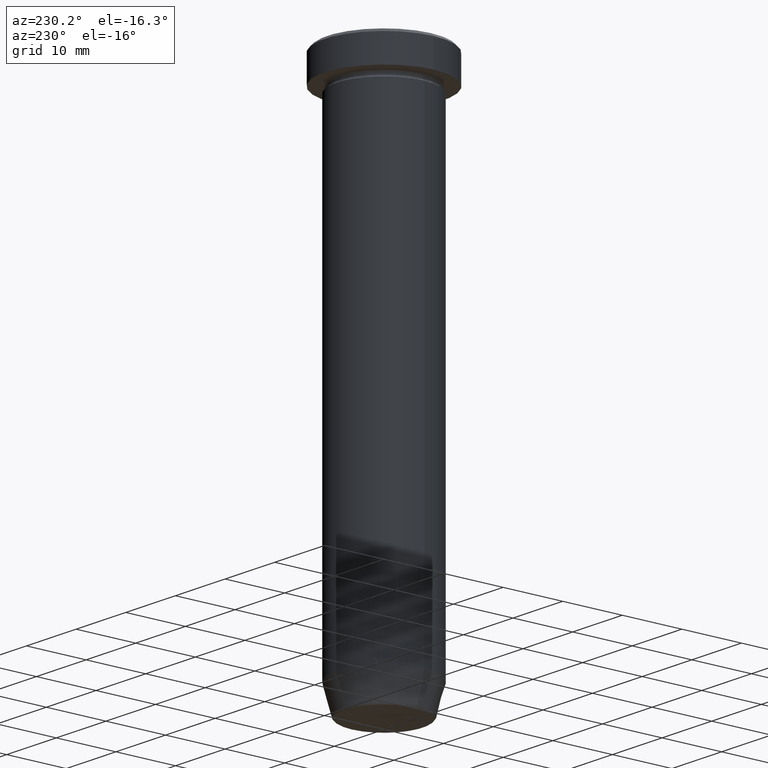
[diagram: clean part render]
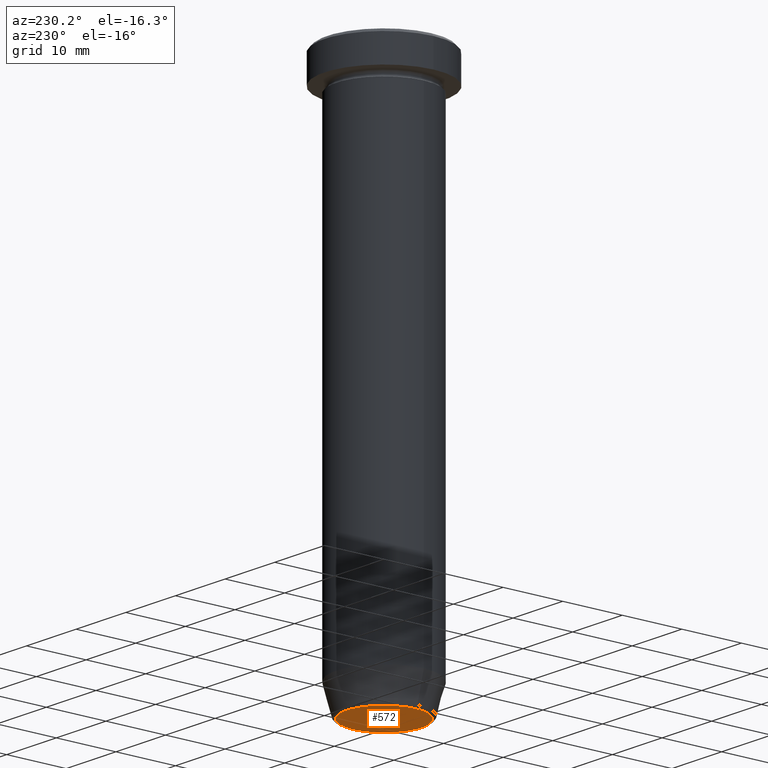
[diagram: same view with one face highlighted and labeled with its STEP entity id]
A machine part, auxiliary view. The second image highlights one B-rep face of the part: STEP entity #572.
In plain terms, the highlighted planar face has unit normal (0, -0, 1).
Its self-contained STEP definition (entity closure, byte-faithful):
#17 = CARTESIAN_POINT ( 'NONE',  ( 0.000000000000000000, 0.000000000000000000, -90.00000000000000000 ) ) ;
#27 = AXIS2_PLACEMENT_3D ( 'NONE', #447, #308, #34 ) ;
#34 = DIRECTION ( 'NONE',  ( 1.000000000000000000, 0.000000000000000000, 0.000000000000000000 ) ) ;
#43 = CARTESIAN_POINT ( 'NONE',  ( 6.276590543854902116, 0.000000000000000000, -90.00000000000000000 ) ) ;
#62 = DIRECTION ( 'NONE',  ( 1.000000000000000000, 0.000000000000000000, 0.000000000000000000 ) ) ;
#82 = PLANE ( 'NONE',  #27 ) ;
#85 = EDGE_CURVE ( 'NONE', #127, #238, #175, .T. ) ;
#109 = AXIS2_PLACEMENT_3D ( 'NONE', #132, #501, #172 ) ;
#123 = FACE_OUTER_BOUND ( 'NONE', #260, .T. ) ;
#127 = VERTEX_POINT ( 'NONE', #43 ) ;
#132 = CARTESIAN_POINT ( 'NONE',  ( 0.000000000000000000, 0.000000000000000000, -90.00000000000000000 ) ) ;
#163 = DIRECTION ( 'NONE',  ( 0.000000000000000000, 0.000000000000000000, -1.000000000000000000 ) ) ;
#172 = DIRECTION ( 'NONE',  ( 1.000000000000000000, 0.000000000000000000, 0.000000000000000000 ) ) ;
#175 = CIRCLE ( 'NONE', #109, 6.276590543854902116 ) ;
#194 = CARTESIAN_POINT ( 'NONE',  ( -6.276590543854902116, 7.982336011935118383E-16, -90.00000000000000000 ) ) ;
#216 = AXIS2_PLACEMENT_3D ( 'NONE', #17, #163, #62 ) ;
#238 = VERTEX_POINT ( 'NONE', #194 ) ;
#260 = EDGE_LOOP ( 'NONE', ( #536, #400 ) ) ;
#308 = DIRECTION ( 'NONE',  ( 0.000000000000000000, -0.000000000000000000, 1.000000000000000000 ) ) ;
#351 = EDGE_CURVE ( 'NONE', #238, #127, #451, .T. ) ;
#400 = ORIENTED_EDGE ( 'NONE', *, *, #351, .T. ) ;
#447 = CARTESIAN_POINT ( 'NONE',  ( 0.000000000000000000, 4.898587196589412237E-15, -90.00000000000000000 ) ) ;
#451 = CIRCLE ( 'NONE', #216, 6.276590543854902116 ) ;
#501 = DIRECTION ( 'NONE',  ( 0.000000000000000000, 0.000000000000000000, -1.000000000000000000 ) ) ;
#536 = ORIENTED_EDGE ( 'NONE', *, *, #85, .T. ) ;
#572 = ADVANCED_FACE ( 'NONE', ( #123 ), #82, .F. ) ;